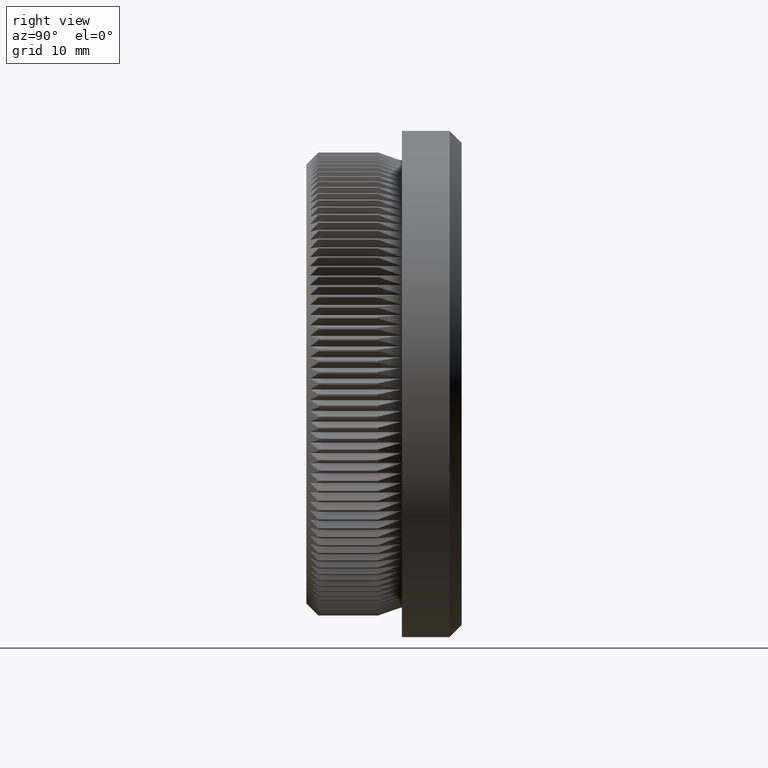
[diagram: clean part render]
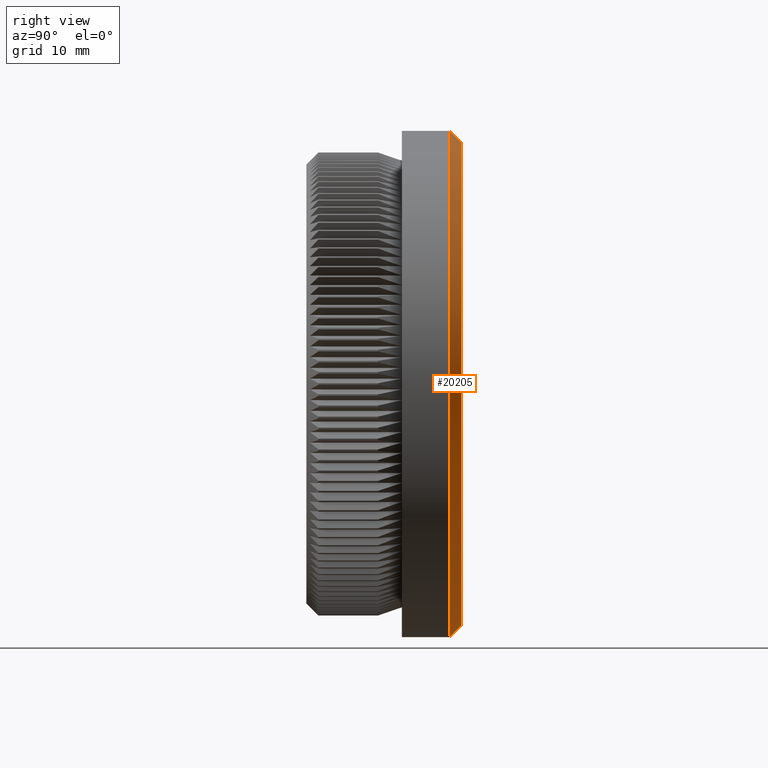
[diagram: same view with one face highlighted and labeled with its STEP entity id]
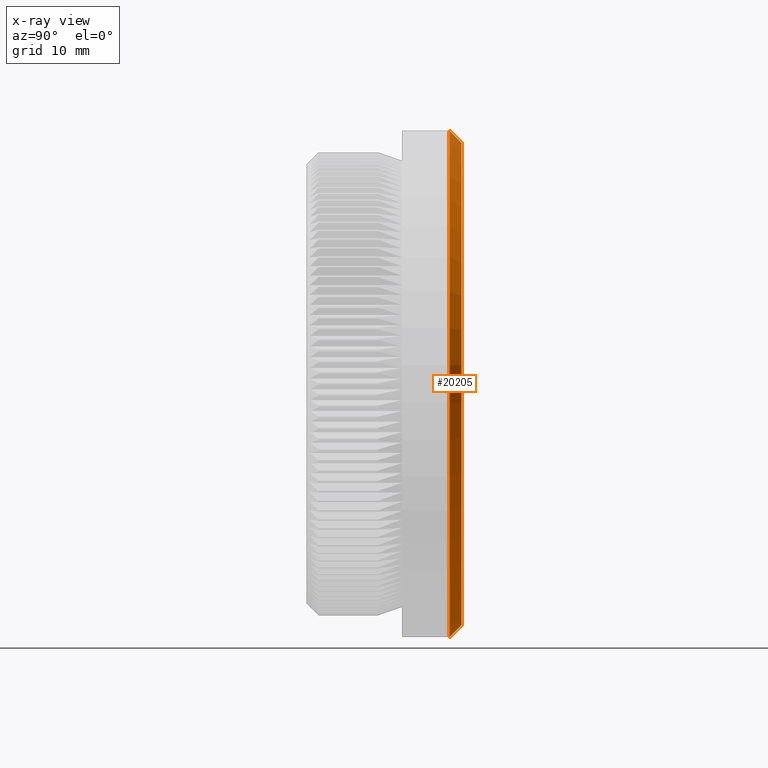
[diagram: x-ray of the same camera — body ghosted, the highlighted face saturated]
A machine part, right view. The second image highlights one B-rep face of the part: STEP entity #20205.
The next image is the same camera in x-ray: the body ghosted, the highlighted face saturated — about 0% of this face is hidden behind the body in this view.
In plain terms, the highlighted conical surface has half-angle 45 deg.
Its self-contained STEP definition (entity closure, byte-faithful):
#2361 = CARTESIAN_POINT ( 'NONE',  ( 2.535018874235020400E-015, 13.00000000000000000, 20.19999999999999200 ) ) ;
#2575 = EDGE_CURVE ( 'NONE', #19214, #29770, #15967, .T. ) ;
#2645 = ORIENTED_EDGE ( 'NONE', *, *, #2575, .F. ) ;
#4860 = EDGE_CURVE ( 'NONE', #15226, #19214, #28050, .T. ) ;
#7549 = EDGE_LOOP ( 'NONE', ( #8392, #10512, #19931, #2645 ) ) ;
#7754 = EDGE_CURVE ( 'NONE', #15226, #21735, #25061, .T. ) ;
#7950 = CARTESIAN_POINT ( 'NONE',  ( 0.0000000000000000000, 11.99999999999999800, 0.0000000000000000000 ) ) ;
#8392 = ORIENTED_EDGE ( 'NONE', *, *, #4860, .F. ) ;
#8868 = DIRECTION ( 'NONE',  ( 0.0000000000000000000, -0.7071067811865451300, -0.7071067811865500200 ) ) ;
#9728 = VECTOR ( 'NONE', #26808, 1000.000000000000100 ) ;
#9783 = CARTESIAN_POINT ( 'NONE',  ( 0.0000000000000000000, 11.99999999999999800, -21.19999999999999900 ) ) ;
#10512 = ORIENTED_EDGE ( 'NONE', *, *, #7754, .T. ) ;
#11721 = DIRECTION ( 'NONE',  ( 0.0000000000000000000, 1.000000000000000000, 0.0000000000000000000 ) ) ;
#14752 = DIRECTION ( 'NONE',  ( 0.0000000000000000000, 0.0000000000000000000, 1.000000000000000000 ) ) ;
#15051 = CARTESIAN_POINT ( 'NONE',  ( 2.596251214192388800E-015, 11.99999999999999800, 21.19999999999999900 ) ) ;
#15226 = VERTEX_POINT ( 'NONE', #2361 ) ;
#15389 = EDGE_CURVE ( 'NONE', #29770, #21735, #27355, .T. ) ;
#15967 = LINE ( 'NONE', #24962, #26955 ) ;
#18126 = DIRECTION ( 'NONE',  ( -0.0000000000000000000, -1.000000000000000000, -0.0000000000000000000 ) ) ;
#18865 = CARTESIAN_POINT ( 'NONE',  ( 0.0000000000000000000, 13.00000000000000000, -20.19999999999999200 ) ) ;
#19214 = VERTEX_POINT ( 'NONE', #18865 ) ;
#19660 = FACE_OUTER_BOUND ( 'NONE', #7549, .T. ) ;
#19931 = ORIENTED_EDGE ( 'NONE', *, *, #15389, .F. ) ;
#20205 = ADVANCED_FACE ( 'NONE', ( #19660 ), #21805, .T. ) ;
#21063 = AXIS2_PLACEMENT_3D ( 'NONE', #7950, #21852, #14752 ) ;
#21735 = VERTEX_POINT ( 'NONE', #15051 ) ;
#21805 = CONICAL_SURFACE ( 'NONE', #26670, 21.19999999999999900, 0.7853981633974517200 ) ;
#21852 = DIRECTION ( 'NONE',  ( -0.0000000000000000000, -1.000000000000000000, -0.0000000000000000000 ) ) ;
#22055 = CARTESIAN_POINT ( 'NONE',  ( 2.596251214192388800E-015, 11.99999999999999800, 21.19999999999999900 ) ) ;
#22094 = AXIS2_PLACEMENT_3D ( 'NONE', #28079, #11721, #28268 ) ;
#24962 = CARTESIAN_POINT ( 'NONE',  ( 0.0000000000000000000, 11.99999999999999800, -21.19999999999999900 ) ) ;
#25061 = LINE ( 'NONE', #22055, #9728 ) ;
#26670 = AXIS2_PLACEMENT_3D ( 'NONE', #27157, #18126, #29477 ) ;
#26808 = DIRECTION ( 'NONE',  ( 8.659560562354962400E-017, -0.7071067811865451300, 0.7071067811865500200 ) ) ;
#26955 = VECTOR ( 'NONE', #8868, 1000.000000000000100 ) ;
#27157 = CARTESIAN_POINT ( 'NONE',  ( 0.0000000000000000000, 11.99999999999999800, 0.0000000000000000000 ) ) ;
#27355 = CIRCLE ( 'NONE', #21063, 21.19999999999999900 ) ;
#28050 = CIRCLE ( 'NONE', #22094, 20.19999999999999200 ) ;
#28079 = CARTESIAN_POINT ( 'NONE',  ( 0.0000000000000000000, 13.00000000000000000, 0.0000000000000000000 ) ) ;
#28268 = DIRECTION ( 'NONE',  ( 0.0000000000000000000, 0.0000000000000000000, 1.000000000000000000 ) ) ;
#29477 = DIRECTION ( 'NONE',  ( 0.0000000000000000000, 0.0000000000000000000, -1.000000000000000000 ) ) ;
#29770 = VERTEX_POINT ( 'NONE', #9783 ) ;